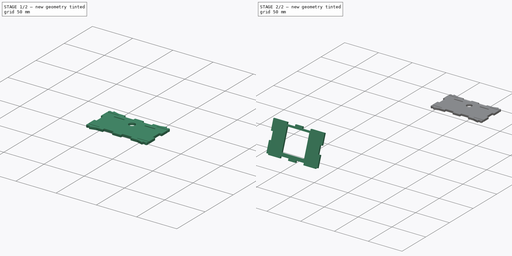
[diagram: build sequence overview — one tinted view per stage of 2, left to right]
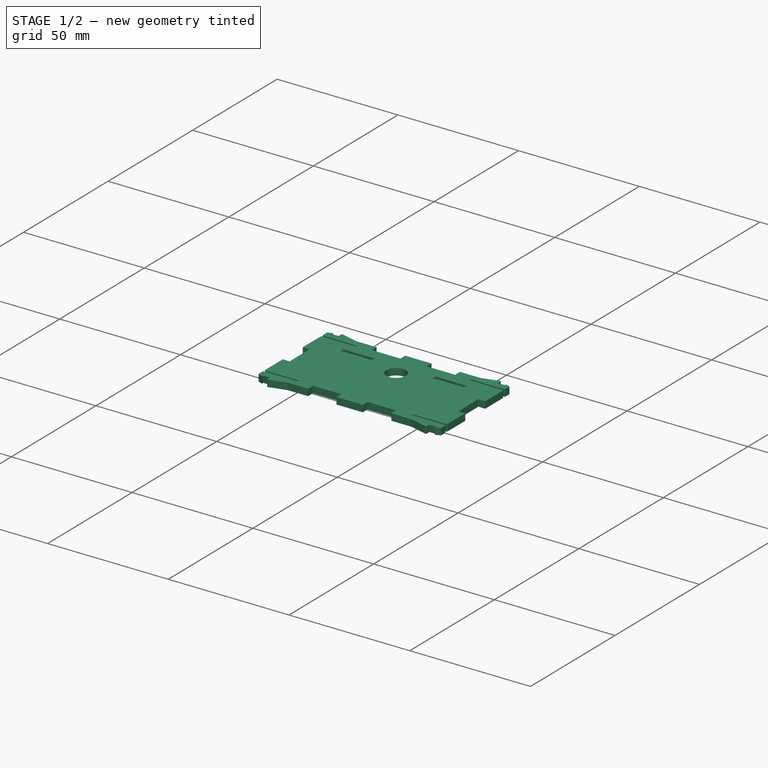
[diagram: stage 1 of 2 — iso view after this stage's code; geometry added in this stage tinted green]
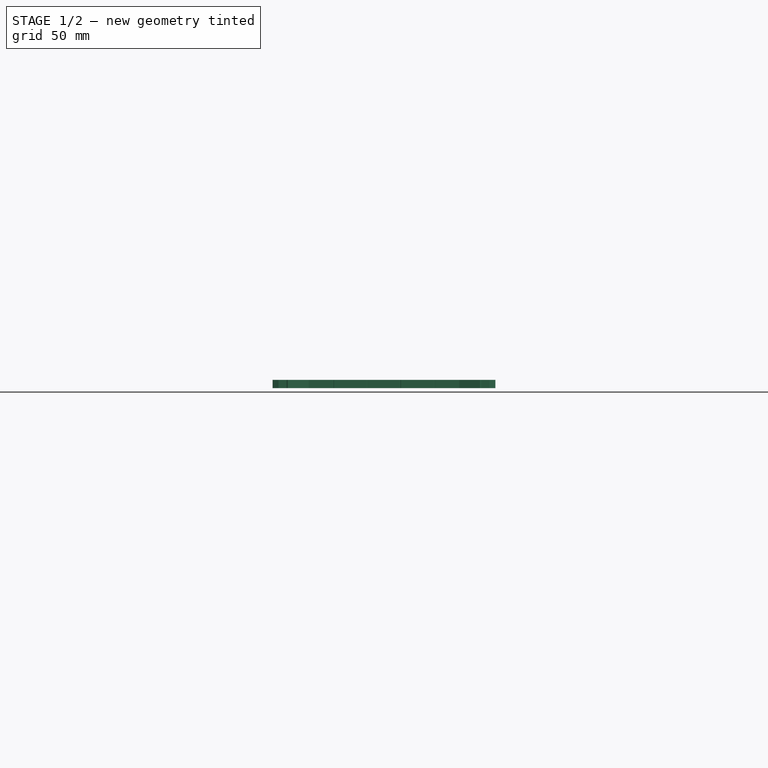
[diagram: stage 1 of 2 — front view after this stage's code; geometry added in this stage tinted green]
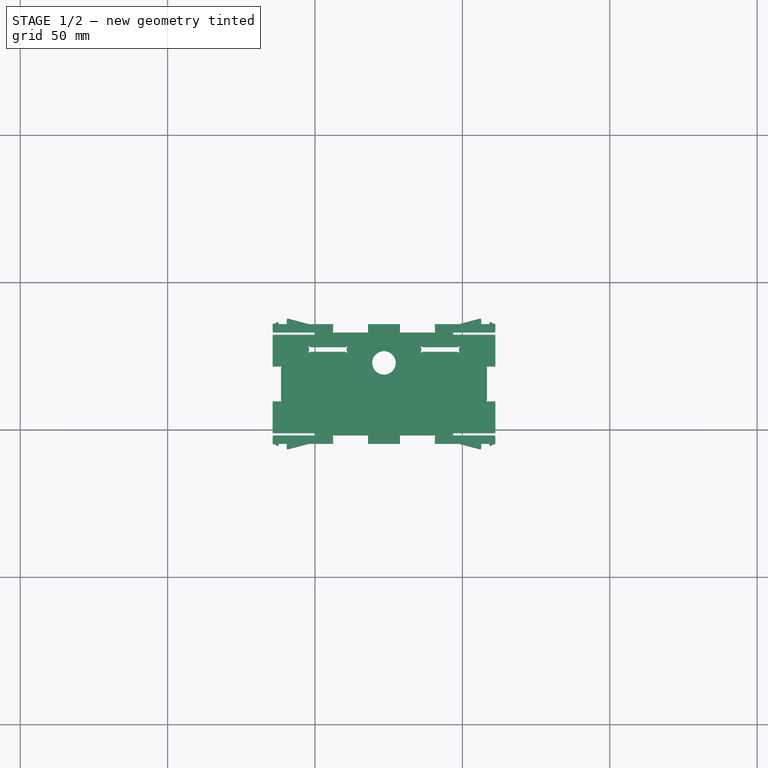
[diagram: stage 1 of 2 — top view after this stage's code; geometry added in this stage tinted green]
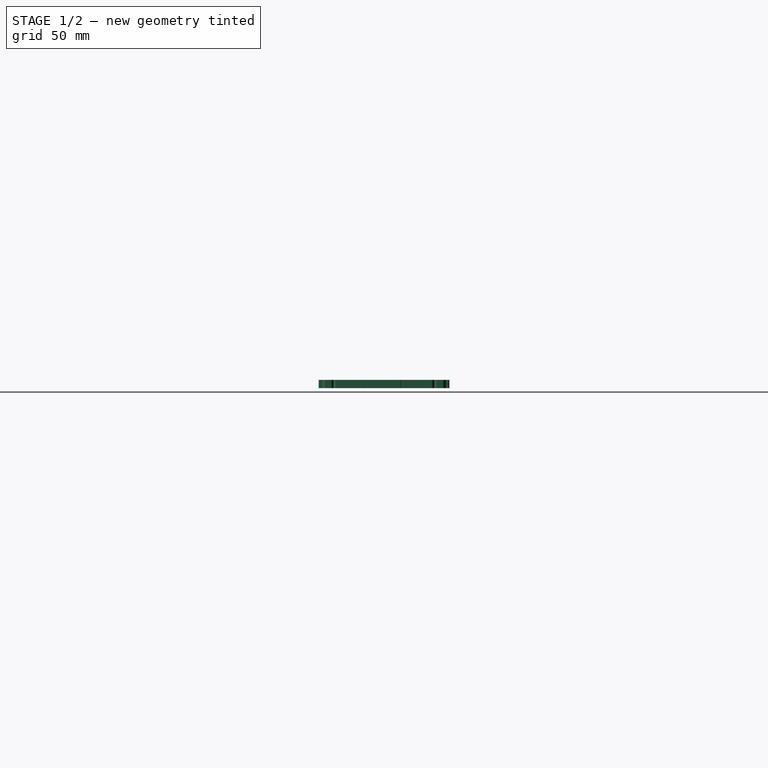
[diagram: stage 1 of 2 — right view after this stage's code; geometry added in this stage tinted green]
FCSTD DOCUMENT  (FreeCAD 1.0R39109 (Git))
Label: TheThing_v3_tabs_export
License: CERN Open Hardware Licence strongly-reciprocal
LicenseURL: https://cern-ohl.web.cern.ch/
objects: Part::Feature×10, Part::Part2DObjectPython×10, Sketcher::SketchObject×2, PartDesign::FeatureBase×1, PartDesign::Pocket×1, PartDesign::Body×1, Part::Extrusion×1, Part::Cut×1
note: 32 computed .brp shape members not serialized (recipe doc carries the construction recipe); baked Part::Feature solids carry a one-line shape summary decoded from their .brp

FEATURE [PartDesign::Body] Body
  AllowCompound = false
  BaseFeature = -> test009
  Group = -> [BaseFeature,Sketch,Pocket]
  Origin = -> Origin
  Tip = -> Pocket
FEATURE [Part::Part2DObjectPython] Shape2DView010  # Draft 2D object (typed FeaturePython)
  AutoUpdate = true
  Base = -> Pocket
  Clip = false
  FaceNumbers = [1]
  FuseArch = false
  HiddenLines = false
  InPlace = true
  OnlySolids = false
  Placement = pos=(115.8,266.4,0) rot=(0,0,1;4.71239rad)
  Projection = (0,-0.939693,0.34202)
  ProjectionMode = 0
  SegmentLength = 0.05
  Tessellation = false
  VisibleOnly = false
FEATURE [Sketcher::SketchObject] Sketch001
  ArcFitTolerance = 1e-06
  AttachmentSupport = -> [test007]
  FullyConstrained = true
  MakeInternals = false
  MapMode = 5
  Placement = pos=(123.4,182.751,32.8) rot=(0,0,1;0rad)
  sketch-geometry (1):
    g0: Circle CenterX=0 CenterY=-10 CenterZ=0 NormalX=0 NormalY=0 NormalZ=1 AngleXU=0 Radius=4
  constraints (3):
    c: Diameter(g0) = 8
    c: PointOnObject(g0,g-2)
    c: DistanceY(g0,g-1) = 10
FEATURE [Part::Extrusion] Extrude
  Base = -> Sketch001
  Dir = (0,0,-1)
  DirMode = 0
  FaceMakerClass = Part::FaceMakerBullseye
  FaceMakerMode = 3
  LengthFwd = 4
  LengthRev = 0
  Solid = true
  Symmetric = false
FEATURE [Part::Cut] Cut
  Base = -> test007
  Refine = true
  Tool = -> Extrude
FEATURE [Part::Part2DObjectPython] Shape2DView011  # Draft 2D object (typed FeaturePython)
  AutoUpdate = true
  Base = -> Cut
  Clip = false
  FuseArch = false
  HiddenLines = false
  InPlace = true
  OnlySolids = false
  Projection = (0,0,1)
  ProjectionMode = 0
  SegmentLength = 0.05
  Tessellation = false
  VisibleOnly = false
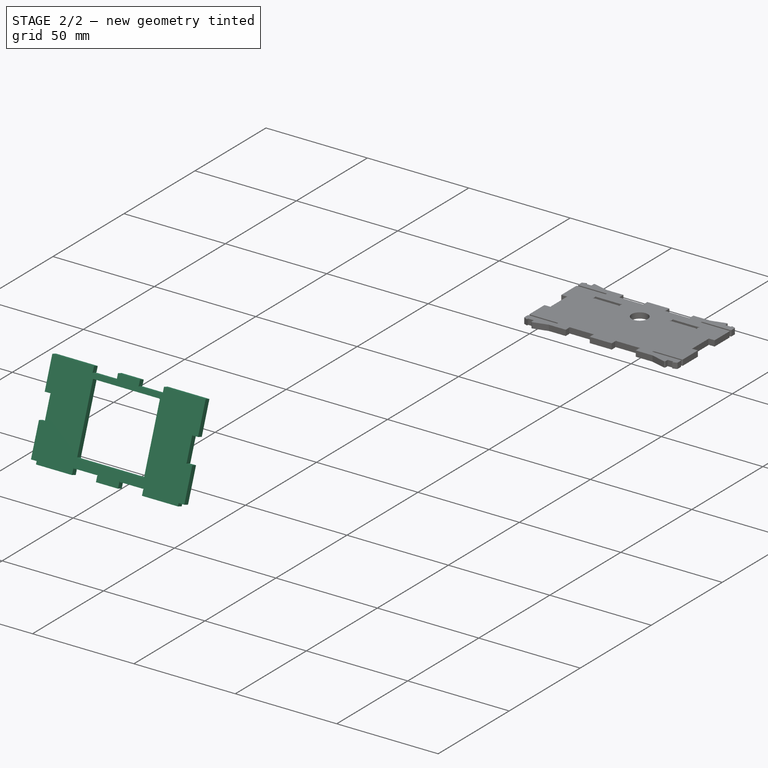
[diagram: stage 2 of 2 — iso view after this stage's code; geometry added in this stage tinted green]
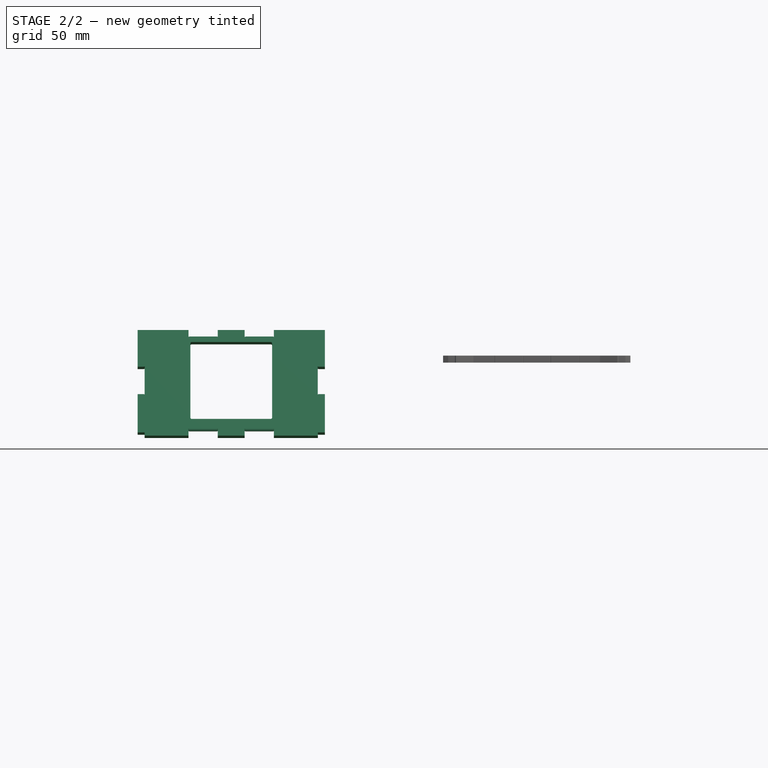
[diagram: stage 2 of 2 — front view after this stage's code; geometry added in this stage tinted green]
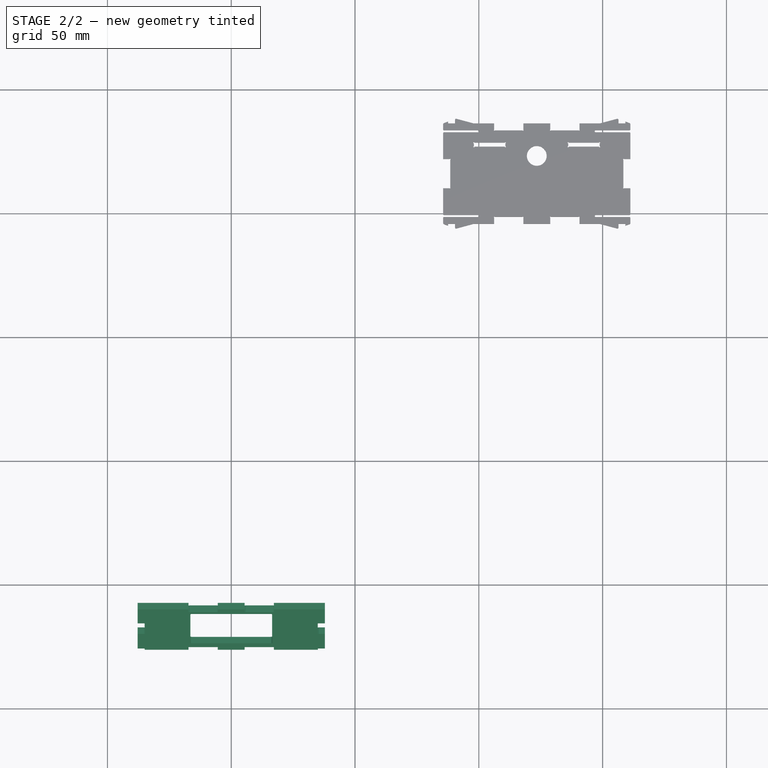
[diagram: stage 2 of 2 — top view after this stage's code; geometry added in this stage tinted green]
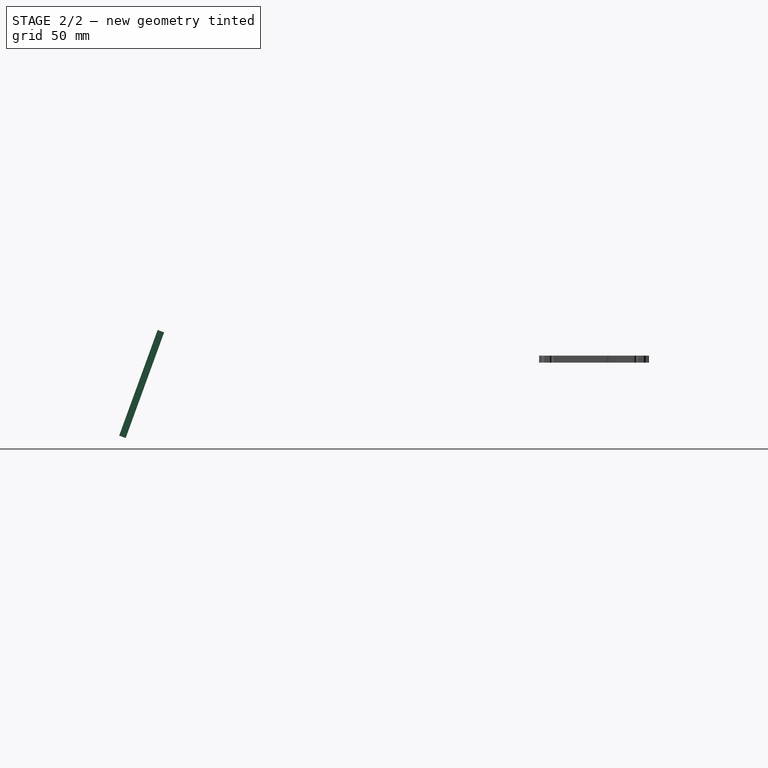
[diagram: stage 2 of 2 — right view after this stage's code; geometry added in this stage tinted green]
FEATURE [Part::Feature] test
  Placement = pos=(37.8,60.3887,67.4723) rot=(0,0,1;0rad)
  shape: bbox 75.6 x 80.6 x 2.8 mm, 50 faces (baked)
FEATURE [Part::Feature] test001
  Placement = pos=(123.072,60.3887,67.8) rot=(0,1,0;1.5708rad)
  shape: bbox 100.6 x 80.6 x 2.8 mm, 106 faces (baked)
FEATURE [Part::Feature] test002
  Placement = pos=(259.328,60.3887,67.8) rot=(0,-1,0;1.5708rad)
  shape: bbox 100.6 x 80.6 x 2.8 mm, 96 faces (baked)
FEATURE [Part::Feature] test003
  Placement = pos=(37.8,115.989,93.1277) rot=(0,-1,0;3.14159rad)
  shape: bbox 75.6 x 42.8 x 2.8 mm, 30 faces (baked)
FEATURE [Part::Feature] test004
  Placement = pos=(123.4,150.989,33.1277) rot=(0,-1,0;3.14159rad)
  shape: bbox 75.6 x 36.97 x 2.8 mm, 49 faces (baked)
FEATURE [Part::Feature] test005
  Placement = pos=(209,115.989,73.3277) rot=(0,-1,0;3.14159rad)
  shape: bbox 75.6 x 16.6 x 2.8 mm, 30 faces (baked)
FEATURE [Part::Feature] test006
  Placement = pos=(37.8,208.406,12.5887) rot=(1,0,0;1.5708rad)
  shape: bbox 75.6 x 104.4 x 2.8 mm, 112 faces (baked)
FEATURE [Part::Feature] test007
  Placement = pos=(123.4,182.751,-27.5887) rot=(-1,0,0;1.5708rad)
  shape: bbox 75.6 x 44.36 x 2.8 mm, 110 faces (baked)
FEATURE [Part::Feature] test008
  Placement = pos=(209,104.751,7.41128) rot=(-1,0,0;1.5708rad)
  shape: bbox 75.6 x 26.36 x 2.8 mm, 92 faces (baked)
FEATURE [Part::Feature] test009
  Placement = pos=(37.8,266.237,8.05) rot=(-0.939693,0,0;1.22173rad)
  shape: bbox 75.6 x 45.69 x 2.923 mm, 58 faces (baked)
FEATURE [Part::Part2DObjectPython] Shape2DView  # Draft 2D object (typed FeaturePython)
  AutoUpdate = true
  Base = -> test
  Clip = false
  FuseArch = false
  HiddenLines = false
  InPlace = true
  OnlySolids = false
  Projection = (0,0,1)
  ProjectionMode = 0
  SegmentLength = 0.05
  Tessellation = false
  VisibleOnly = false
FEATURE [Part::Part2DObjectPython] Shape2DView001  # Draft 2D object (typed FeaturePython)
  AutoUpdate = true
  Base = -> test001
  Clip = false
  FuseArch = false
  HiddenLines = false
  InPlace = true
  OnlySolids = false
  Projection = (0,0,1)
  ProjectionMode = 0
  SegmentLength = 0.05
  Tessellation = false
  VisibleOnly = false
FEATURE [Part::Part2DObjectPython] Shape2DView002  # Draft 2D object (typed FeaturePython)
  AutoUpdate = true
  Base = -> test002
  Clip = false
  FuseArch = false
  HiddenLines = false
  InPlace = true
  OnlySolids = false
  Projection = (0,0,1)
  ProjectionMode = 0
  SegmentLength = 0.05
  Tessellation = false
  VisibleOnly = false
FEATURE [Part::Part2DObjectPython] Shape2DView003  # Draft 2D object (typed FeaturePython)
  AutoUpdate = true
  Base = -> test003
  Clip = false
  FuseArch = false
  HiddenLines = false
  InPlace = true
  OnlySolids = false
  Projection = (0,0,1)
  ProjectionMode = 0
  SegmentLength = 0.05
  Tessellation = false
  VisibleOnly = false
FEATURE [Part::Part2DObjectPython] Shape2DView004  # Draft 2D object (typed FeaturePython)
  AutoUpdate = true
  Base = -> test004
  Clip = false
  FuseArch = false
  HiddenLines = false
  InPlace = true
  OnlySolids = false
  Projection = (0,0,1)
  ProjectionMode = 0
  SegmentLength = 0.05
  Tessellation = false
  VisibleOnly = false
FEATURE [Part::Part2DObjectPython] Shape2DView005  # Draft 2D object (typed FeaturePython)
  AutoUpdate = true
  Base = -> test005
  Clip = false
  FuseArch = false
  HiddenLines = false
  InPlace = true
  OnlySolids = false
  Projection = (0,0,1)
  ProjectionMode = 0
  SegmentLength = 0.05
  Tessellation = false
  VisibleOnly = false
FEATURE [Part::Part2DObjectPython] Shape2DView006  # Draft 2D object (typed FeaturePython)
  AutoUpdate = true
  Base = -> test006
  Clip = false
  FuseArch = false
  HiddenLines = false
  InPlace = true
  OnlySolids = false
  Projection = (0,0,1)
  ProjectionMode = 0
  SegmentLength = 0.05
  Tessellation = false
  VisibleOnly = false
FEATURE [Part::Part2DObjectPython] Shape2DView008  # Draft 2D object (typed FeaturePython)
  AutoUpdate = true
  Base = -> test008
  Clip = false
  FuseArch = false
  HiddenLines = false
  InPlace = true
  OnlySolids = false
  Projection = (0,0,1)
  ProjectionMode = 0
  SegmentLength = 0.05
  Tessellation = false
  VisibleOnly = false
FEATURE [PartDesign::FeatureBase] BaseFeature
  BaseFeature = -> test009
  Suppressed = false
FEATURE [Sketcher::SketchObject] Sketch
  ArcFitTolerance = 1e-06
  AttachmentSupport = -> [BaseFeature]
  ExternalGeometry = -> [BaseFeature]
  FullyConstrained = true
  MakeInternals = false
  MapMode = 5
  Placement = pos=(0,-23.2574,8.465) rot=(1,0,0;1.22173rad)
  sketch-geometry (32):
    g0: LineSegment StartX=-37.8 StartY=-8.47986 StartZ=0 EndX=-35 EndY=-8.47986 EndZ=0
    g1: LineSegment StartX=-35 StartY=-8.47986 StartZ=0 EndX=-35 EndY=-7.07986 EndZ=0
    g2: LineSegment StartX=-35 StartY=-7.07986 StartZ=0 EndX=-37.8 EndY=-7.07986 EndZ=0
    g3: LineSegment StartX=-37.8 StartY=-7.07986 StartZ=0 EndX=-37.8 EndY=-8.47986 EndZ=0
    g4: LineSegment StartX=37.8 StartY=-8.47986 StartZ=0 EndX=37.8 EndY=-7.07986 EndZ=0
    g5: LineSegment StartX=37.8 StartY=-7.07986 StartZ=0 EndX=35 EndY=-7.07986 EndZ=0
    g6: LineSegment StartX=35 StartY=-7.07986 StartZ=0 EndX=35 EndY=-8.47986 EndZ=0
    g7: LineSegment StartX=35 StartY=-8.47986 StartZ=0 EndX=37.8 EndY=-8.47986 EndZ=0
    g8: LineSegment StartX=-17.2466 StartY=-8.47986 StartZ=0 EndX=-17.2466 EndY=-5.91062 EndZ=0
    g9: ArcOfCircle CenterX=-17.1547 CenterY=-5.73299 CenterZ=0 NormalX=0 NormalY=0 NormalZ=1 AngleXU=0 Radius=0.2 StartAngle=0.539657 EndAngle=4.23489
    g10: LineSegment StartX=-16.9832 StartY=-5.63022 StartZ=0 EndX=-5.69684 EndY=-5.63022 EndZ=0
    g11: ArcOfCircle CenterX=-5.52526 CenterY=-5.73299 CenterZ=0 NormalX=0 NormalY=0 NormalZ=1 AngleXU=0 Radius=0.2 StartAngle=5.18988 EndAngle=8.88512
    g12: LineSegment StartX=-5.43335 StartY=-5.91062 StartZ=0 EndX=-5.43335 EndY=-8.47986 EndZ=0
    g13: LineSegment StartX=-5.43335 StartY=-8.47986 StartZ=0 EndX=-17.2466 EndY=-8.47986 EndZ=0
    g14: LineSegment StartX=5.43335 StartY=-8.47986 StartZ=0 EndX=5.43335 EndY=-5.91062 EndZ=0
    g15: ArcOfCircle CenterX=5.52526 CenterY=-5.73299 CenterZ=0 NormalX=0 NormalY=0 NormalZ=1 AngleXU=0 Radius=0.2 StartAngle=0.539657 EndAngle=4.23489
    g16: LineSegment StartX=5.69684 StartY=-5.63022 StartZ=0 EndX=16.9832 EndY=-5.63022 EndZ=0
    g17: ArcOfCircle CenterX=17.1547 CenterY=-5.73299 CenterZ=0 NormalX=0 NormalY=0 NormalZ=1 AngleXU=0 Radius=0.2 StartAngle=5.18988 EndAngle=8.88512
    g18: LineSegment StartX=17.2466 StartY=-5.91062 StartZ=0 EndX=17.2466 EndY=-8.47986 EndZ=0
    g19: LineSegment StartX=17.2466 StartY=-8.47986 StartZ=0 EndX=5.43335 EndY=-8.47986 EndZ=0
    g20: LineSegment StartX=-17.2467 StartY=36.9204 StartZ=0 EndX=-17.2466 EndY=34.3602 EndZ=0
    g21: ArcOfCircle CenterX=-17.1498 CenterY=34.1852 CenterZ=0 NormalX=0 NormalY=0 NormalZ=1 AngleXU=0 Radius=0.2 StartAngle=2.0761 EndAngle=5.95325
    g22: LineSegment StartX=-16.9606 StartY=34.1204 StartZ=0 EndX=-5.71938 EndY=34.1204 EndZ=0
    g23: ArcOfCircle CenterX=-5.53017 CenterY=34.1852 CenterZ=0 NormalX=0 NormalY=0 NormalZ=1 AngleXU=0 Radius=0.2 StartAngle=3.47153 EndAngle=7.34868
    g24: LineSegment StartX=-5.43335 StartY=34.3602 StartZ=0 EndX=-5.43335 EndY=36.9204 EndZ=0
    g25: LineSegment StartX=-5.43335 StartY=36.9204 StartZ=0 EndX=-17.2467 EndY=36.9204 EndZ=0
    g26: LineSegment StartX=5.43335 StartY=36.9204 StartZ=0 EndX=17.2466 EndY=36.9204 EndZ=0
    g27: LineSegment StartX=17.2466 StartY=36.9204 StartZ=0 EndX=17.2466 EndY=34.3602 EndZ=0
    g28: ArcOfCircle CenterX=17.1498 CenterY=34.1852 CenterZ=0 NormalX=0 NormalY=0 NormalZ=1 AngleXU=0 Radius=0.2 StartAngle=3.47153 EndAngle=7.34868
    g29: LineSegment StartX=16.9606 StartY=34.1204 StartZ=0 EndX=5.71938 EndY=34.1204 EndZ=0
    g30: ArcOfCircle CenterX=5.53017 CenterY=34.1852 CenterZ=0 NormalX=0 NormalY=0 NormalZ=1 AngleXU=0 Radius=0.2 StartAngle=2.0761 EndAngle=5.95325
    g31: LineSegment StartX=5.43335 StartY=34.3602 StartZ=0 EndX=5.43335 EndY=36.9204 EndZ=0
  constraints (86):
    c: Coincident(g0,g1)
    c: Coincident(g1,g2)
    c: Coincident(g2,g3)
    c: Coincident(g3,g0)
    c: Horizontal(g0)
    c: Horizontal(g2)
    c: Vertical(g1)
    c: Vertical(g3)
    c: Coincident(g0,g-3)
    c: Coincident(g4,g5)
    c: Coincident(g5,g6)
    c: Coincident(g6,g7)
    c: Coincident(g7,g4)
    c: Vertical(g4)
    c: Vertical(g6)
    c: Horizontal(g5)
    c: Horizontal(g7)
    c: Coincident(g4,g-4)
    c: Equal(g2,g5)
    c: Equal(g1,g6)
    c: Distance(g2,g2) = 2.8
    c: Distance(g1,g1) = 1.4
    c: PointOnObject(g8,g-8)
    c: Coincident(g8,g-5)
    c: Vertical(g8)
    c: Coincident(g9,g-6)
    c: Coincident(g9,g10)
    c: Coincident(g10,g-6)
    c: Coincident(g11,g-7)
    c: Coincident(g11,g12)
    c: PointOnObject(g12,g-9)
    c: Vertical(g12)
    c: Coincident(g12,g13)
    c: Coincident(g13,g8)
    c: Coincident(g8,g9)
    c: Coincident(g10,g11)
    c: PointOnObject(g14,g-10)
    c: Coincident(g14,g-11)
    c: Vertical(g14)
    c: Coincident(g15,g-14)
    c: Coincident(g15,g16)
    c: Coincident(g16,g-14)
    c: Coincident(g17,g18)
    c: PointOnObject(g18,g-12)
    c: Vertical(g18)
    c: Coincident(g18,g19)
    c: Coincident(g19,g14)
    c: Coincident(g17,g-13)
    c: Coincident(g16,g17)
    c: Coincident(g14,g15)
    c: Equal(g17,g15)
    c: Equal(g15,g11)
    c: Equal(g11,g9)
    c: Radius(g9) = 0.2
    c: Coincident(g-20,g20)
    c: Coincident(g20,g-20)
    c: PointOnObject(g21,g-19)
    c: Coincident(g21,g22)
    c: PointOnObject(g22,g-19)
    c: Coincident(g23,g-18)
    c: Coincident(g23,g24)
    c: Coincident(g24,g-18)
    c: Coincident(g24,g25)
    c: Coincident(g25,g20)
    c: Coincident(g20,g21)
    c: Coincident(g22,g23)
    c: Coincident(g-15,g26)
    c: Coincident(g26,g-17)
    c: Coincident(g26,g27)
    c: Coincident(g27,g-17)
    c: PointOnObject(g28,g-16)
    c: Coincident(g28,g29)
    c: Coincident(g30,g-15)
    c: Coincident(g30,g31)
    c: Coincident(g31,g26)
    c: Coincident(g29,g30)
    c: Coincident(g27,g28)
    c: Equal(g28,g30)
    c: Equal(g30,g23)
    c: Equal(g23,g21)
    c: Radius(g21) = 0.2
    c: PointOnObject(g29,g-16)
    c: PointOnObject(g-16,g30)
    c: PointOnObject(g-16,g28)
    c: PointOnObject(g-19,g23)
    c: PointOnObject(g-19,g21)
FEATURE [PartDesign::Pocket] Pocket
  BaseFeature = -> BaseFeature
  Direction = (0,0.939693,-0.34202)
  Length = 5
  Length2 = 5
  Profile = -> Sketch
  ReferenceAxis = -> Sketch [N_Axis]
  Refine = true
  Suppressed = false
  Type = 1
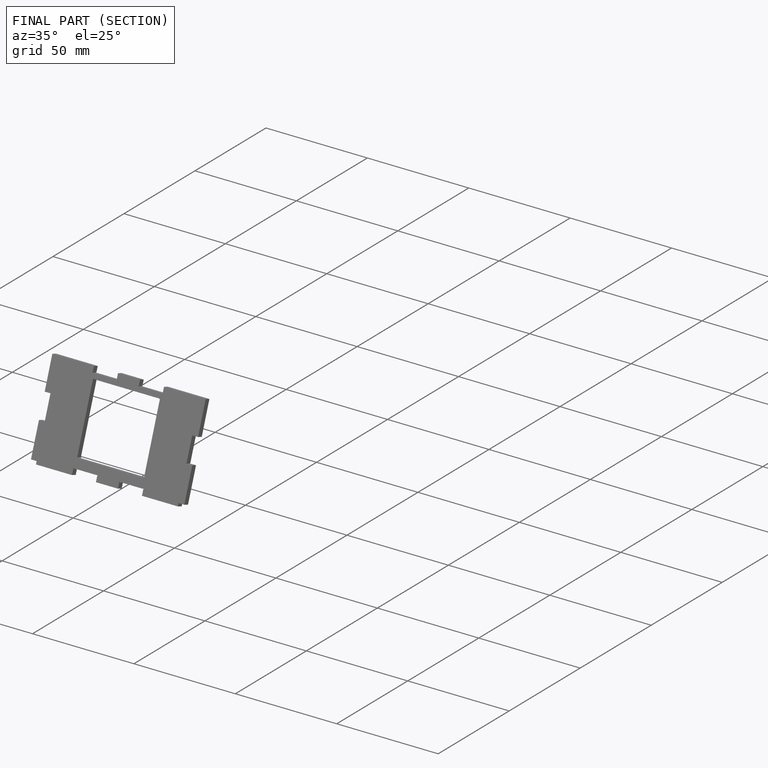
[diagram: finished part — half-section view (interior)]
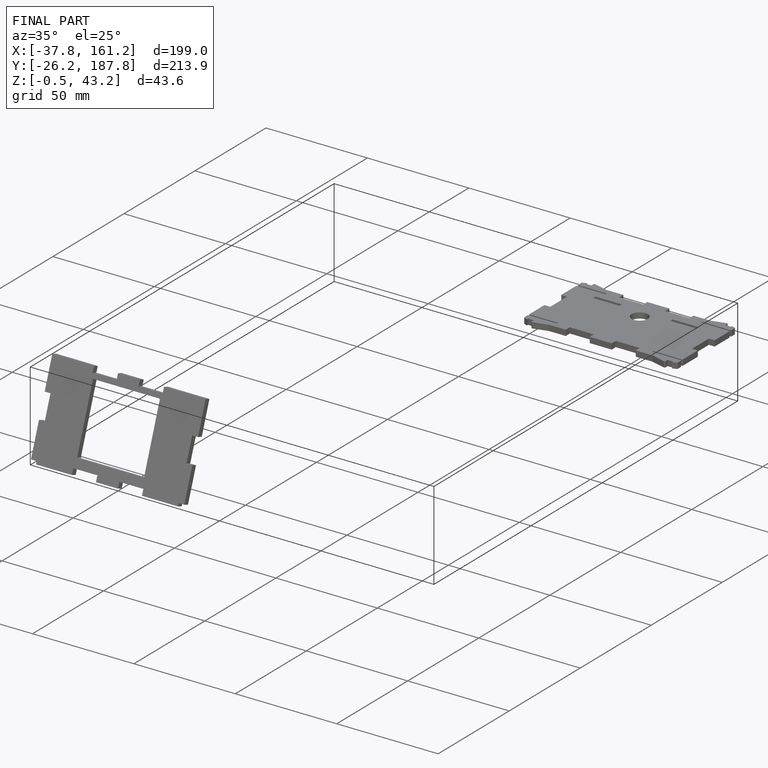
[diagram: finished part — iso view with bounding-box wireframe]
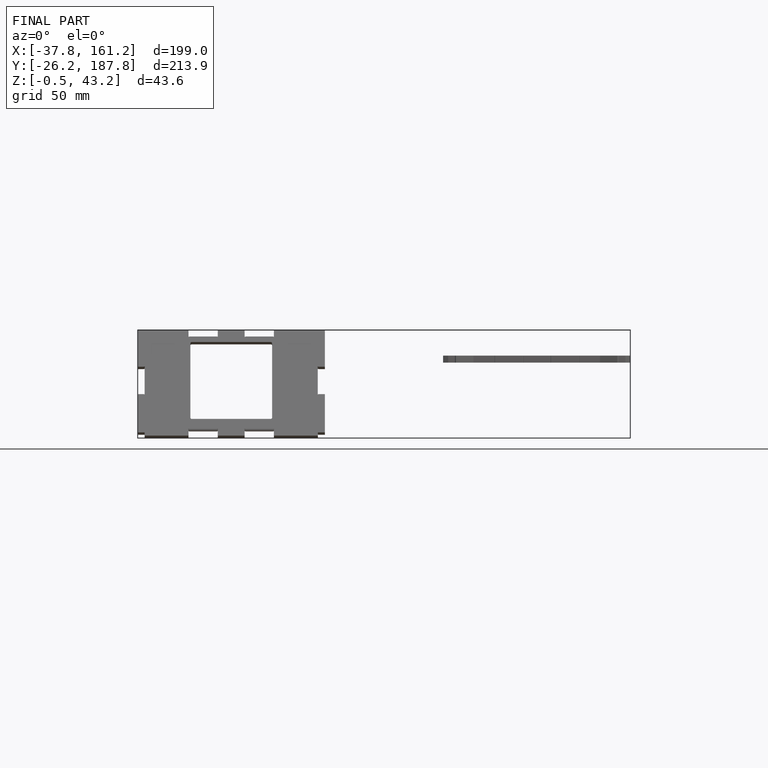
[diagram: finished part — front view with bounding-box wireframe]
